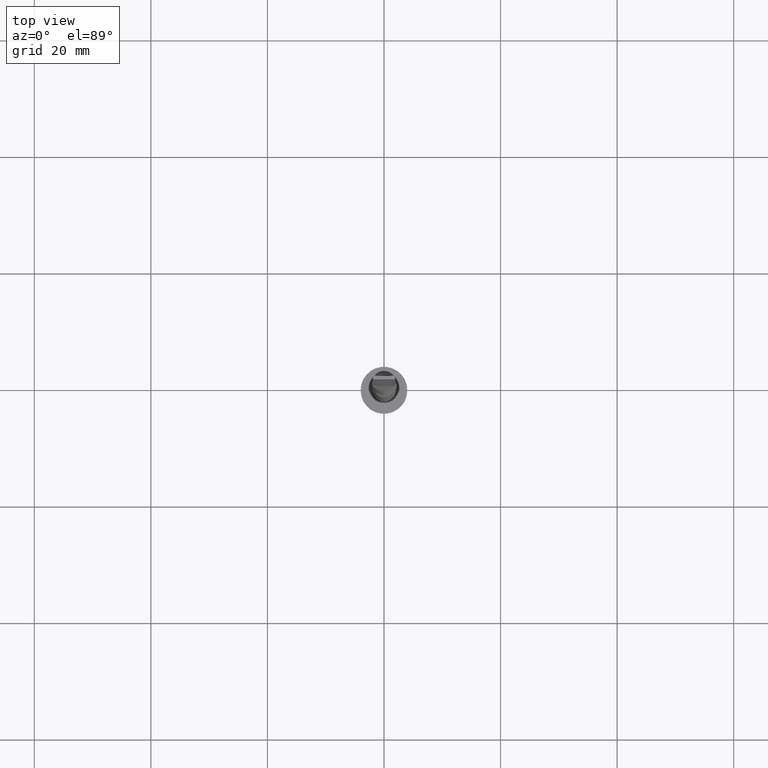
[diagram: clean part render]
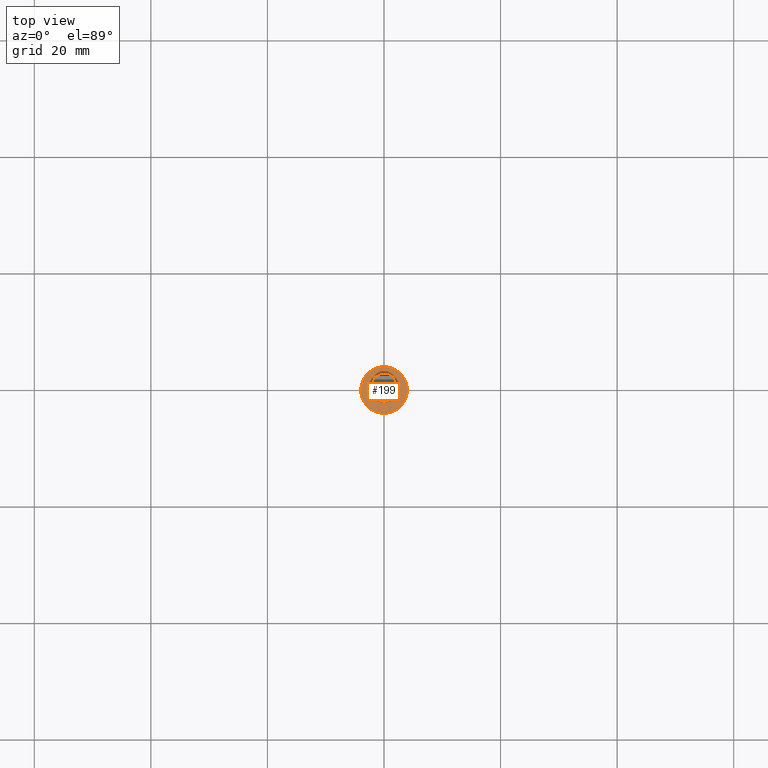
[diagram: same view with one face highlighted and labeled with its STEP entity id]
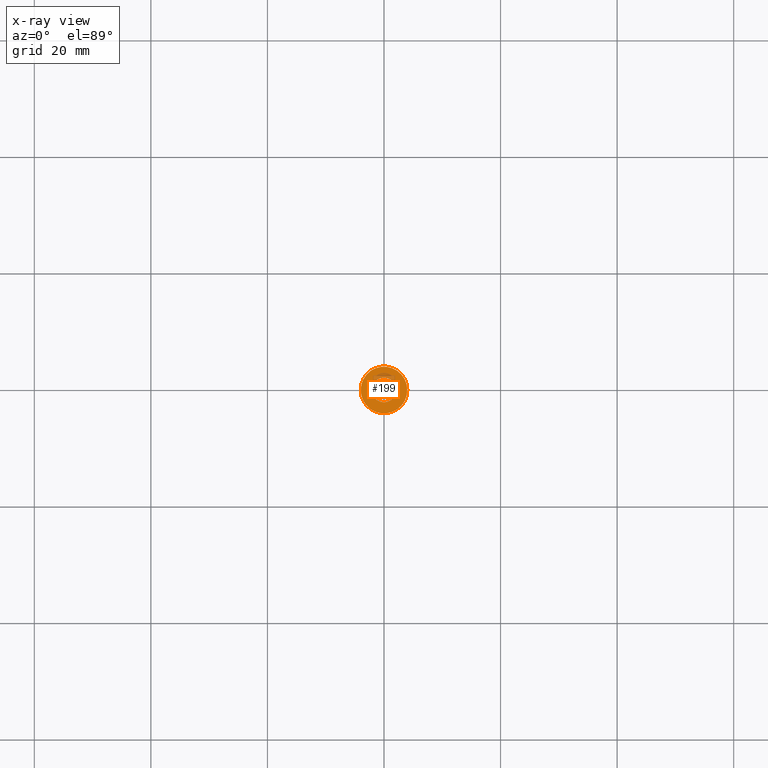
[diagram: x-ray of the same camera — body ghosted, the highlighted face saturated]
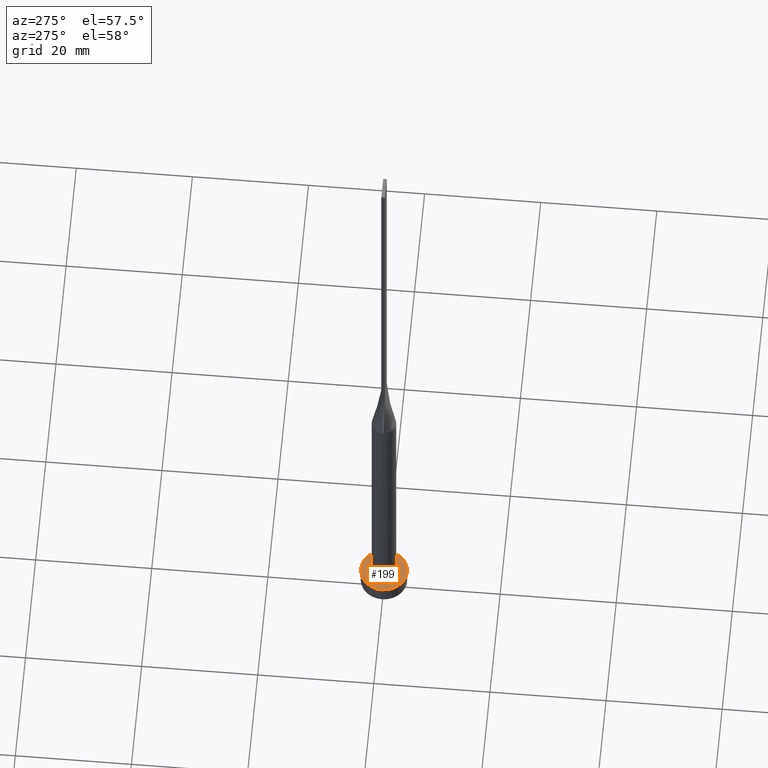
[diagram: same view with one face highlighted and labeled with its STEP entity id]
A machine part, top view. The second image highlights one B-rep face of the part: STEP entity #199.
The next image is the same camera in x-ray: the body ghosted, the highlighted face saturated — about 11% of this face is hidden behind the body in this view.
A second angle (auxiliary view) of the same face is appended — the face is thin or edge-on in the first view.
In plain terms, the highlighted planar face has unit normal (0, 0, 1).
Its self-contained STEP definition (entity closure, byte-faithful):
#23 = ORIENTED_EDGE ( 'NONE', *, *, #353, .T. ) ;
#35 = FACE_BOUND ( 'NONE', #327, .T. ) ;
#42 = FACE_OUTER_BOUND ( 'NONE', #272, .T. ) ;
#91 = AXIS2_PLACEMENT_3D ( 'NONE', #394, #532, #437 ) ;
#99 = EDGE_CURVE ( 'NONE', #229, #546, #161, .T. ) ;
#107 = DIRECTION ( 'NONE',  ( 1.000000000000000000, 0.000000000000000000, 0.000000000000000000 ) ) ;
#112 = CIRCLE ( 'NONE', #459, 4.000000000000000000 ) ;
#136 = VERTEX_POINT ( 'NONE', #291 ) ;
#150 = ORIENTED_EDGE ( 'NONE', *, *, #99, .F. ) ;
#161 = CIRCLE ( 'NONE', #331, 2.100000000000000089 ) ;
#199 = ADVANCED_FACE ( 'NONE', ( #35, #42 ), #251, .T. ) ;
#229 = VERTEX_POINT ( 'NONE', #447 ) ;
#239 = DIRECTION ( 'NONE',  ( 1.000000000000000000, 0.000000000000000000, 0.000000000000000000 ) ) ;
#247 = CARTESIAN_POINT ( 'NONE',  ( 0.000000000000000000, 0.000000000000000000, 3.000000000000000000 ) ) ;
#248 = ORIENTED_EDGE ( 'NONE', *, *, #332, .T. ) ;
#251 = PLANE ( 'NONE',  #91 ) ;
#272 = EDGE_LOOP ( 'NONE', ( #248, #23 ) ) ;
#284 = CARTESIAN_POINT ( 'NONE',  ( -2.100000000000000089, 0.000000000000000000, 3.000000000000000000 ) ) ;
#286 = AXIS2_PLACEMENT_3D ( 'NONE', #474, #561, #239 ) ;
#291 = CARTESIAN_POINT ( 'NONE',  ( -4.000000000000000000, 0.000000000000000000, 3.000000000000000000 ) ) ;
#294 = DIRECTION ( 'NONE',  ( 0.000000000000000000, 0.000000000000000000, 1.000000000000000000 ) ) ;
#321 = AXIS2_PLACEMENT_3D ( 'NONE', #347, #294, #486 ) ;
#327 = EDGE_LOOP ( 'NONE', ( #411, #150 ) ) ;
#331 = AXIS2_PLACEMENT_3D ( 'NONE', #467, #374, #345 ) ;
#332 = EDGE_CURVE ( 'NONE', #136, #380, #432, .T. ) ;
#345 = DIRECTION ( 'NONE',  ( 1.000000000000000000, 0.000000000000000000, 0.000000000000000000 ) ) ;
#347 = CARTESIAN_POINT ( 'NONE',  ( 0.000000000000000000, 0.000000000000000000, 3.000000000000000000 ) ) ;
#353 = EDGE_CURVE ( 'NONE', #380, #136, #112, .T. ) ;
#374 = DIRECTION ( 'NONE',  ( 0.000000000000000000, 0.000000000000000000, 1.000000000000000000 ) ) ;
#380 = VERTEX_POINT ( 'NONE', #562 ) ;
#383 = DIRECTION ( 'NONE',  ( 0.000000000000000000, 0.000000000000000000, 1.000000000000000000 ) ) ;
#394 = CARTESIAN_POINT ( 'NONE',  ( 0.000000000000000000, 0.000000000000000000, 3.000000000000000000 ) ) ;
#411 = ORIENTED_EDGE ( 'NONE', *, *, #569, .F. ) ;
#432 = CIRCLE ( 'NONE', #286, 4.000000000000000000 ) ;
#437 = DIRECTION ( 'NONE',  ( 1.000000000000000000, 0.000000000000000000, -0.000000000000000000 ) ) ;
#447 = CARTESIAN_POINT ( 'NONE',  ( 2.100000000000000089, 2.571758278209441957E-16, 3.000000000000000000 ) ) ;
#459 = AXIS2_PLACEMENT_3D ( 'NONE', #247, #383, #107 ) ;
#467 = CARTESIAN_POINT ( 'NONE',  ( 0.000000000000000000, 0.000000000000000000, 3.000000000000000000 ) ) ;
#474 = CARTESIAN_POINT ( 'NONE',  ( 0.000000000000000000, 0.000000000000000000, 3.000000000000000000 ) ) ;
#486 = DIRECTION ( 'NONE',  ( 1.000000000000000000, 0.000000000000000000, 0.000000000000000000 ) ) ;
#532 = DIRECTION ( 'NONE',  ( 0.000000000000000000, 0.000000000000000000, 1.000000000000000000 ) ) ;
#546 = VERTEX_POINT ( 'NONE', #284 ) ;
#552 = CIRCLE ( 'NONE', #321, 2.100000000000000089 ) ;
#561 = DIRECTION ( 'NONE',  ( 0.000000000000000000, 0.000000000000000000, 1.000000000000000000 ) ) ;
#562 = CARTESIAN_POINT ( 'NONE',  ( 4.000000000000000000, 4.898587196589412829E-16, 3.000000000000000000 ) ) ;
#569 = EDGE_CURVE ( 'NONE', #546, #229, #552, .T. ) ;